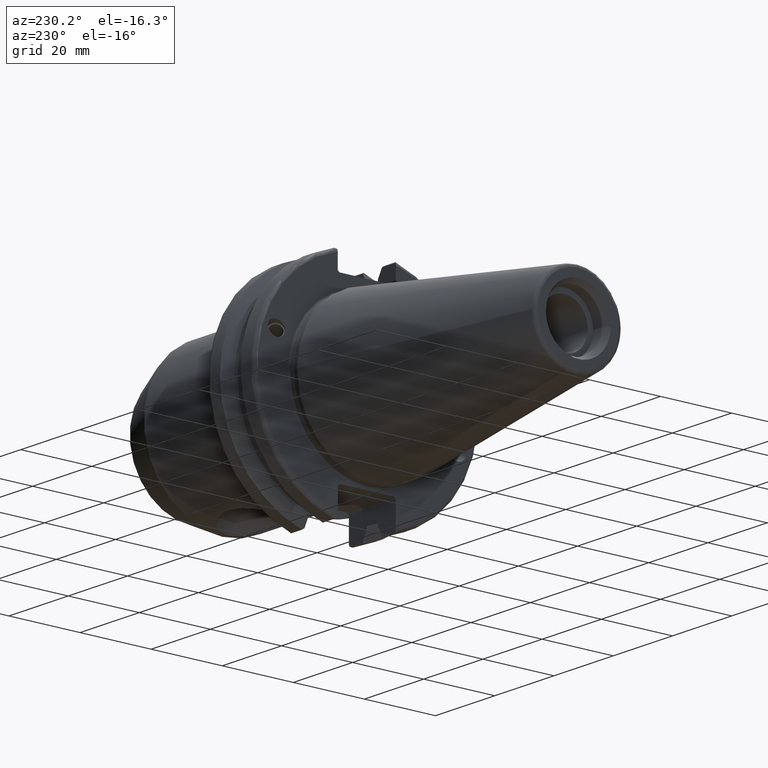
[diagram: clean part render]
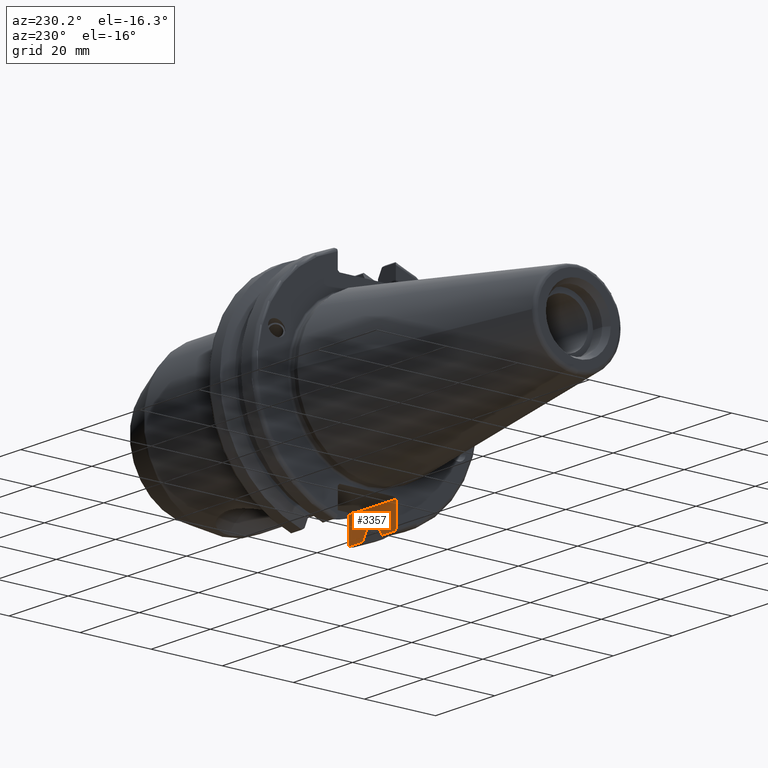
[diagram: same view with one face highlighted and labeled with its STEP entity id]
A machine part, auxiliary view. The second image highlights one B-rep face of the part: STEP entity #3357.
In plain terms, the highlighted planar face has unit normal (0, -1, 0).
Its self-contained STEP definition (entity closure, byte-faithful):
#906=DIRECTION('',(0.E0,0.E0,-1.E0));
#907=VECTOR('',#906,7.584267083980E-1);
#908=CARTESIAN_POINT('',(1.905E1,-8.19E0,-2.31E1));
#909=LINE('',#908,#907);
#910=DIRECTION('',(1.E0,0.E0,0.E0));
#911=VECTOR('',#910,1.5875E1);
#912=CARTESIAN_POINT('',(3.175E0,-8.19E0,-2.31E1));
#913=LINE('',#912,#911);
#914=DIRECTION('',(0.E0,0.E0,1.E0));
#915=VECTOR('',#914,6.539271246102E0);
#916=CARTESIAN_POINT('',(3.175E0,-8.19E0,-2.963927124610E1));
#917=LINE('',#916,#915);
#918=CARTESIAN_POINT('',(3.319127725090E0,-8.19E0,-3.017550162589E1));
#919=CARTESIAN_POINT('',(3.287697548307E0,-8.19E0,-3.012160739357E1));
#920=CARTESIAN_POINT('',(3.234911048228E0,-8.19E0,-3.001000429245E1));
#921=CARTESIAN_POINT('',(3.186481360641E0,-8.19E0,-2.982130314403E1));
#922=CARTESIAN_POINT('',(3.175E0,-8.19E0,-2.970021459717E1));
#923=CARTESIAN_POINT('',(3.175E0,-8.19E0,-2.963927124610E1));
#925=DIRECTION('',(-1.E0,0.E0,0.E0));
#926=VECTOR('',#925,4.567557578422E0);
#927=CARTESIAN_POINT('',(7.886685303513E0,-8.19E0,-3.017550162589E1));
#928=LINE('',#927,#926);
#929=DIRECTION('',(0.E0,1.051244367118E-14,-1.E0));
#930=VECTOR('',#929,8.448829287288E-1);
#931=CARTESIAN_POINT('',(9.2191E0,-8.19E0,-2.693225575402E1));
#932=LINE('',#931,#930);
#933=DIRECTION('',(0.E0,0.E0,1.E0));
#934=VECTOR('',#933,8.448829287288E-1);
#935=CARTESIAN_POINT('',(1.30491E1,-8.19E0,-2.777713868275E1));
#936=LINE('',#935,#934);
#937=DIRECTION('',(-1.E0,0.E0,0.E0));
#938=VECTOR('',#937,4.524357578422E0);
#939=CARTESIAN_POINT('',(1.890587227491E1,-8.19E0,-3.017550162589E1));
#940=LINE('',#939,#938);
#941=CARTESIAN_POINT('',(1.905E1,-8.19E0,-2.963927124610E1));
#942=CARTESIAN_POINT('',(1.905E1,-8.19E0,-2.970017752490E1));
#943=CARTESIAN_POINT('',(1.903854874040E1,-8.19E0,-2.982121557019E1));
#944=CARTESIAN_POINT('',(1.899019844606E1,-8.19E0,-3.000981182678E1));
#945=CARTESIAN_POINT('',(1.893735074351E1,-8.19E0,-3.012152458619E1));
#946=CARTESIAN_POINT('',(1.890587227491E1,-8.19E0,-3.017550162589E1));
#948=DIRECTION('',(0.E0,0.E0,-1.E0));
#949=VECTOR('',#948,5.780844537704E0);
#950=CARTESIAN_POINT('',(1.905E1,-8.19E0,-2.385842670840E1));
#951=LINE('',#950,#949);
#1337=CARTESIAN_POINT('',(7.886685303513E0,-8.19E0,-3.017550162589E1));
#1338=CARTESIAN_POINT('',(8.034991770422E0,-8.19E0,-2.990933412169E1));
#1339=CARTESIAN_POINT('',(8.331432272878E0,-8.19E0,-2.937678822520E1));
#1340=CARTESIAN_POINT('',(8.775596147001E0,-8.19E0,-2.857734670452E1));
#1341=CARTESIAN_POINT('',(9.071342064357E0,-8.19E0,-2.804395547229E1));
#1342=CARTESIAN_POINT('',(9.2191E0,-8.19E0,-2.777713868275E1));
#1364=DIRECTION('',(1.E0,0.E0,0.E0));
#1365=VECTOR('',#1364,3.83E0);
#1366=CARTESIAN_POINT('',(9.2191E0,-8.19E0,-2.693225575402E1));
#1367=LINE('',#1366,#1365);
#1399=CARTESIAN_POINT('',(1.30491E1,-8.19E0,-2.777713868275E1));
#1400=CARTESIAN_POINT('',(1.319685793565E1,-8.19E0,-2.804395547231E1));
#1401=CARTESIAN_POINT('',(1.349260385303E1,-8.19E0,-2.857734670457E1));
#1402=CARTESIAN_POINT('',(1.393676772715E1,-8.19E0,-2.937678822525E1));
#1403=CARTESIAN_POINT('',(1.423320822959E1,-8.19E0,-2.990933412171E1));
#1404=CARTESIAN_POINT('',(1.438151469649E1,-8.19E0,-3.017550162589E1));
#2113=CARTESIAN_POINT('',(3.175E0,-8.19E0,-2.963927124610E1));
#2115=VERTEX_POINT('',#2113);
#2135=CARTESIAN_POINT('',(3.175E0,-8.19E0,-2.31E1));
#2136=VERTEX_POINT('',#2135);
#2168=CARTESIAN_POINT('',(1.905E1,-8.19E0,-2.963927124610E1));
#2169=VERTEX_POINT('',#2168);
#2170=VERTEX_POINT('',#946);
#2186=CARTESIAN_POINT('',(1.438151469649E1,-8.19E0,-3.017550162589E1));
#2187=VERTEX_POINT('',#2186);
#2188=VERTEX_POINT('',#1399);
#2189=CARTESIAN_POINT('',(1.30491E1,-8.19E0,-2.693225575402E1));
#2190=VERTEX_POINT('',#2189);
#2191=CARTESIAN_POINT('',(9.2191E0,-8.19E0,-2.693225575402E1));
#2192=VERTEX_POINT('',#2191);
#2193=CARTESIAN_POINT('',(9.2191E0,-8.19E0,-2.777713868275E1));
#2194=VERTEX_POINT('',#2193);
#2195=VERTEX_POINT('',#1337);
#2196=CARTESIAN_POINT('',(3.319127725090E0,-8.19E0,-3.017550162589E1));
#2197=VERTEX_POINT('',#2196);
#2420=CARTESIAN_POINT('',(1.905E1,-8.19E0,-2.385842670840E1));
#2421=VERTEX_POINT('',#2420);
#2424=CARTESIAN_POINT('',(1.905E1,-8.19E0,-2.31E1));
#2425=VERTEX_POINT('',#2424);
#3330=CARTESIAN_POINT('',(2.005E1,-8.19E0,-2.26E1));
#3331=DIRECTION('',(0.E0,-1.E0,0.E0));
#3332=DIRECTION('',(-1.E0,0.E0,0.E0));
#3333=AXIS2_PLACEMENT_3D('',#3330,#3331,#3332);
#3334=PLANE('',#3333);
#3335=ORIENTED_EDGE('',*,*,#3010,.F.);
#3337=ORIENTED_EDGE('',*,*,#3336,.F.);
#3338=ORIENTED_EDGE('',*,*,#3177,.F.);
#3339=ORIENTED_EDGE('',*,*,#3227,.F.);
#3340=ORIENTED_EDGE('',*,*,#3249,.F.);
#3342=ORIENTED_EDGE('',*,*,#3341,.T.);
#3344=ORIENTED_EDGE('',*,*,#3343,.F.);
#3346=ORIENTED_EDGE('',*,*,#3345,.T.);
#3348=ORIENTED_EDGE('',*,*,#3347,.F.);
#3350=ORIENTED_EDGE('',*,*,#3349,.T.);
#3352=ORIENTED_EDGE('',*,*,#3351,.F.);
#3353=ORIENTED_EDGE('',*,*,#3317,.F.);
#3354=ORIENTED_EDGE('',*,*,#2934,.F.);
#3355=EDGE_LOOP('',(#3335,#3337,#3338,#3339,#3340,#3342,#3344,#3346,#3348,#3350,
#3352,#3353,#3354));
#3356=FACE_OUTER_BOUND('',#3355,.F.);
#3357=ADVANCED_FACE('',(#3356),#3334,.F.);
#924=B_SPLINE_CURVE_WITH_KNOTS('',3,(#918,#919,#920,#921,#922,#923),
.UNSPECIFIED.,.F.,.F.,(4,1,1,4),(0.E0,3.333333333333E-1,6.666666666667E-1,1.E0),
.UNSPECIFIED.);
#947=B_SPLINE_CURVE_WITH_KNOTS('',3,(#941,#942,#943,#944,#945,#946),
.UNSPECIFIED.,.F.,.F.,(4,1,1,4),(0.E0,3.333333333333E-1,6.666666666667E-1,1.E0),
.UNSPECIFIED.);
#1343=B_SPLINE_CURVE_WITH_KNOTS('',3,(#1337,#1338,#1339,#1340,#1341,#1342),
.UNSPECIFIED.,.F.,.F.,(4,1,1,4),(0.E0,3.333333333333E-1,6.666666666667E-1,1.E0),
.UNSPECIFIED.);
#1405=B_SPLINE_CURVE_WITH_KNOTS('',3,(#1399,#1400,#1401,#1402,#1403,#1404),
.UNSPECIFIED.,.F.,.F.,(4,1,1,4),(0.E0,3.333333333333E-1,6.666666666667E-1,1.E0),
.UNSPECIFIED.);
#2934=EDGE_CURVE('',#2421,#2169,#951,.T.);
#3010=EDGE_CURVE('',#2425,#2421,#909,.T.);
#3177=EDGE_CURVE('',#2115,#2136,#917,.T.);
#3227=EDGE_CURVE('',#2197,#2115,#924,.T.);
#3249=EDGE_CURVE('',#2195,#2197,#928,.T.);
#3317=EDGE_CURVE('',#2169,#2170,#947,.T.);
#3336=EDGE_CURVE('',#2136,#2425,#913,.T.);
#3341=EDGE_CURVE('',#2195,#2194,#1343,.T.);
#3343=EDGE_CURVE('',#2192,#2194,#932,.T.);
#3345=EDGE_CURVE('',#2192,#2190,#1367,.T.);
#3347=EDGE_CURVE('',#2188,#2190,#936,.T.);
#3349=EDGE_CURVE('',#2188,#2187,#1405,.T.);
#3351=EDGE_CURVE('',#2170,#2187,#940,.T.);